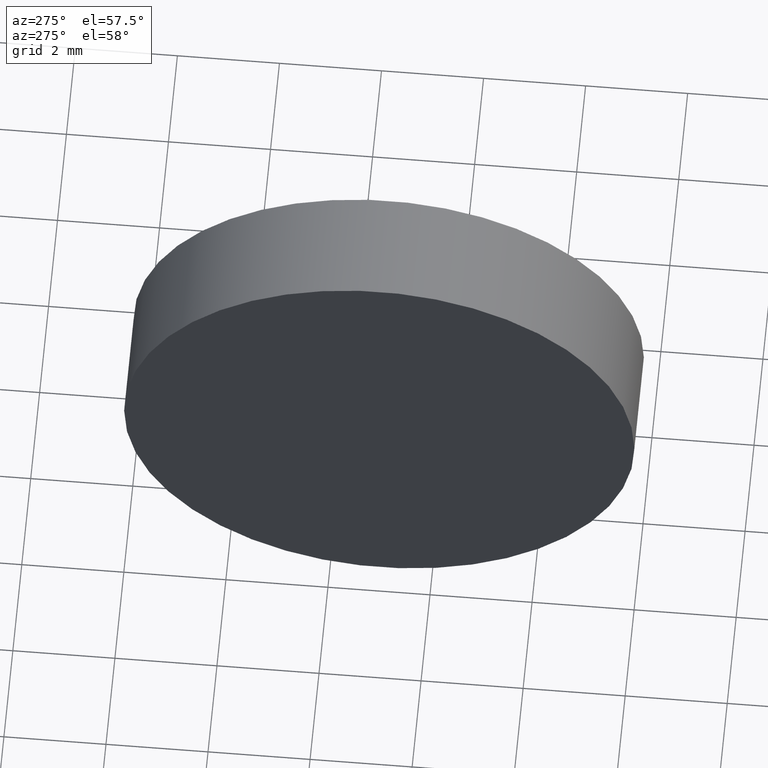
[diagram: clean part render]
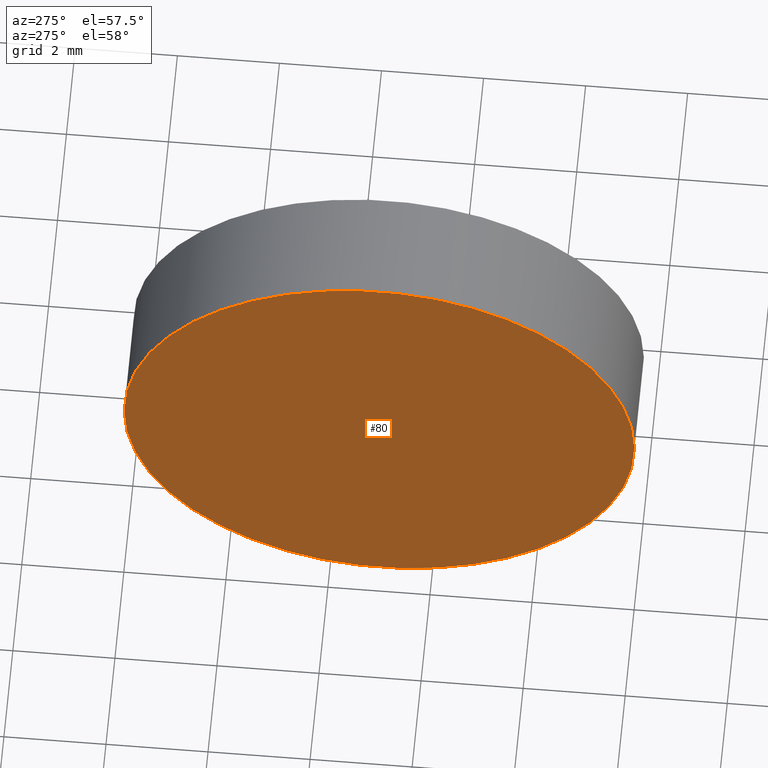
[diagram: same view with one face highlighted and labeled with its STEP entity id]
A machine part, auxiliary view. The second image highlights one B-rep face of the part: STEP entity #80.
In plain terms, the highlighted planar face has unit normal (1, -0, 0).
Its self-contained STEP definition (entity closure, byte-faithful):
#1 = DIRECTION ( 'NONE',  ( 3.159171411554934600E-016, 1.000000000000000000, 0.0000000000000000000 ) ) ;
#4 = EDGE_CURVE ( 'NONE', #61, #21, #140, .T. ) ;
#7 = CARTESIAN_POINT ( 'NONE',  ( 22.42423205362066000, 13.03112609140304200, 0.0000000000000000000 ) ) ;
#21 = VERTEX_POINT ( 'NONE', #157 ) ;
#26 = CARTESIAN_POINT ( 'NONE',  ( 22.42423205362066000, 13.03112609140304200, 0.0000000000000000000 ) ) ;
#38 = DIRECTION ( 'NONE',  ( 0.0000000000000000000, -1.000000000000000000, 0.0000000000000000000 ) ) ;
#46 = PLANE ( 'NONE',  #119 ) ;
#47 = AXIS2_PLACEMENT_3D ( 'NONE', #59, #162, #123 ) ;
#52 = DIRECTION ( 'NONE',  ( 1.000000000000000000, -3.159171411554934600E-016, 0.0000000000000000000 ) ) ;
#54 = ORIENTED_EDGE ( 'NONE', *, *, #153, .T. ) ;
#59 = CARTESIAN_POINT ( 'NONE',  ( 22.42423205362066000, 13.03112609140304200, 0.0000000000000000000 ) ) ;
#61 = VERTEX_POINT ( 'NONE', #70 ) ;
#66 = FACE_OUTER_BOUND ( 'NONE', #156, .T. ) ;
#70 = CARTESIAN_POINT ( 'NONE',  ( 22.42423205362066000, 18.03112609140304200, 6.123233995736768300E-016 ) ) ;
#80 = ADVANCED_FACE ( 'NONE', ( #66 ), #46, .F. ) ;
#101 = AXIS2_PLACEMENT_3D ( 'NONE', #26, #116, #38 ) ;
#114 = CIRCLE ( 'NONE', #47, 5.000000000000000900 ) ;
#116 = DIRECTION ( 'NONE',  ( -1.000000000000000000, 3.159171411554934600E-016, -0.0000000000000000000 ) ) ;
#119 = AXIS2_PLACEMENT_3D ( 'NONE', #7, #52, #1 ) ;
#123 = DIRECTION ( 'NONE',  ( 0.0000000000000000000, -1.000000000000000000, 0.0000000000000000000 ) ) ;
#140 = CIRCLE ( 'NONE', #101, 5.000000000000000900 ) ;
#153 = EDGE_CURVE ( 'NONE', #21, #61, #114, .T. ) ;
#156 = EDGE_LOOP ( 'NONE', ( #54, #159 ) ) ;
#157 = CARTESIAN_POINT ( 'NONE',  ( 22.42423205362066000, 8.031126091403040200, 0.0000000000000000000 ) ) ;
#159 = ORIENTED_EDGE ( 'NONE', *, *, #4, .T. ) ;
#162 = DIRECTION ( 'NONE',  ( -1.000000000000000000, 3.159171411554934600E-016, -0.0000000000000000000 ) ) ;